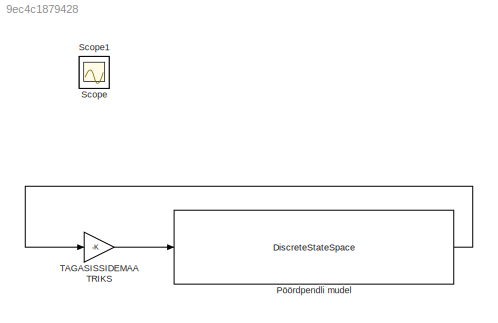
MODEL slx_9ec4c1879428
KIND model
CONFIG AbsTol = auto
CONFIG EnableMultiTasking = off
CONFIG FixedStep = auto
CONFIG MaxStep = auto
CONFIG MinStep = auto
CONFIG RelTol = 1e-3
CONFIG SampleTimeConstraint = Unconstrained
CONFIG SolverName = VariableStepAuto
CONFIG StartTime = 0.0
CONFIG StopTime = 10.0
BLOCK [DiscreteStateSpace] Pöördpendli mudel
  A = sysd.a
  B = sysd.b
  C = sysd.c
  D = sysd.d
  InitialCondition = [0 0 1 0]
  SampleTime = td
BLOCK [Scope] Scope
  Floating = off
  IOType = viewer
  NumInputPorts = 1
  Ports = []
  ScopeSpecificationString = Simulink.scopes.TimeScopeBlockCfg('CurrentConfiguration', extmgr.ConfigurationSet(extmgr.Configuration('Core','General UI',true),extmgr.Configuration('Core','Source UI',true),extmgr.Configuration('Sources','WiredSimulink',true),extmgr.Configuration('Visuals','Time Domain',true,'SerializedDisplays',{struct('MinYLimReal','-0.40031','MaxYLimReal','1.16151','YLabelReal','','MinYLimMag','0.00000','MaxY...<+1431ch>
BLOCK [Scope] Scope1
  Floating = off
  IOType = viewer
  NumInputPorts = 1
  Ports = []
  ScopeSpecificationString = Simulink.scopes.TimeScopeBlockCfg('CurrentConfiguration', extmgr.ConfigurationSet(extmgr.Configuration('Core','General UI',true),extmgr.Configuration('Core','Source UI',true),extmgr.Configuration('Sources','WiredSimulink',true,'DataLoggingVariableName','ScopeData1'),extmgr.Configuration('Visuals','Time Domain',true,'SerializedDisplays',{struct('MinYLimReal','-0.6223','MaxYLimReal','0.47125','YLabe...<+1433ch>
BLOCK [Gain] TAGASISSIDEMAATRIKS
  Gain = -K
  Multiplication = Matrix(K*u)
LINE Pöördpendli mudel:1 -> TAGASISSIDEMAATRIKS:1
LINE TAGASISSIDEMAATRIKS:1 -> Pöördpendli mudel:1
